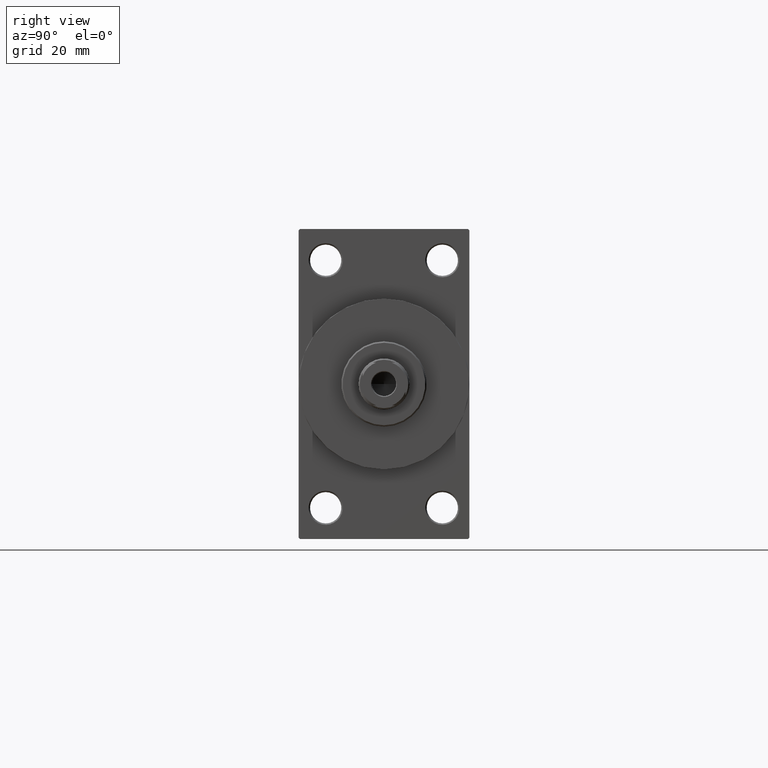
[diagram: clean part render]
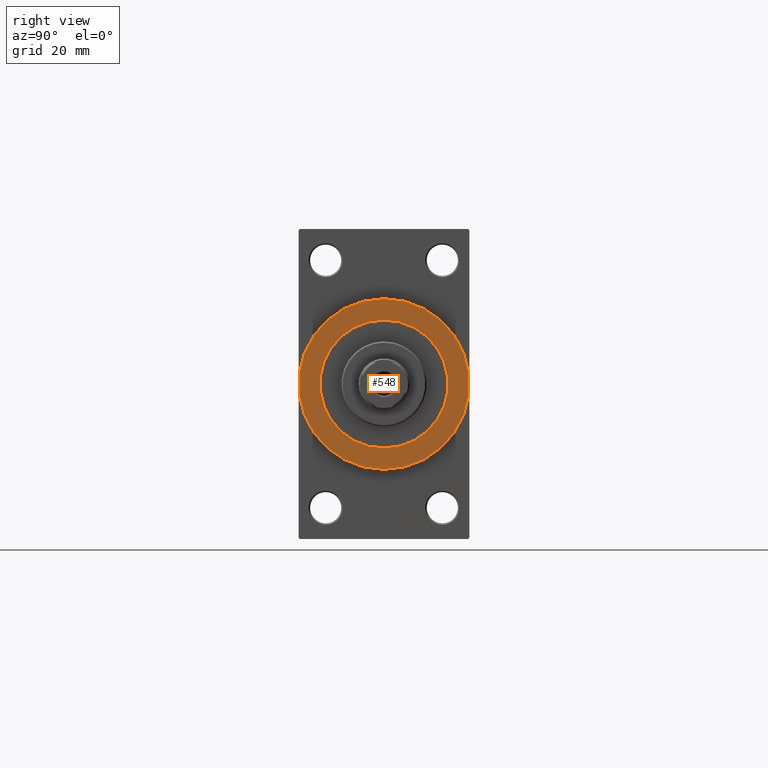
[diagram: same view with one face highlighted and labeled with its STEP entity id]
A machine part, right view. The second image highlights one B-rep face of the part: STEP entity #548.
In plain terms, the highlighted planar face has unit normal (1, 0, 0).
Its self-contained STEP definition (entity closure, byte-faithful):
#548 = ADVANCED_FACE ( 'NONE', ( #20323, #45617 ), #38687, .T. ) ;
#1416 = EDGE_LOOP ( 'NONE', ( #13824, #15287 ) ) ;
#5965 = DIRECTION ( 'NONE',  ( 0.000000000000000000, 0.000000000000000000, -1.000000000000000000 ) ) ;
#6529 = CARTESIAN_POINT ( 'NONE',  ( 188.0000000000000000, 3.673940397442059178E-15, -30.00000000000000000 ) ) ;
#6805 = ORIENTED_EDGE ( 'NONE', *, *, #11671, .F. ) ;
#8250 = CIRCLE ( 'NONE', #37998, 22.50000000000000355 ) ;
#8675 = DIRECTION ( 'NONE',  ( 1.000000000000000000, 0.000000000000000000, 0.000000000000000000 ) ) ;
#11011 = DIRECTION ( 'NONE',  ( 0.000000000000000000, 0.000000000000000000, -1.000000000000000000 ) ) ;
#11504 = VERTEX_POINT ( 'NONE', #19448 ) ;
#11671 = EDGE_CURVE ( 'NONE', #26905, #11504, #8250, .T. ) ;
#12227 = DIRECTION ( 'NONE',  ( 1.000000000000000000, 0.000000000000000000, 0.000000000000000000 ) ) ;
#13824 = ORIENTED_EDGE ( 'NONE', *, *, #32765, .T. ) ;
#14125 = DIRECTION ( 'NONE',  ( 1.000000000000000000, 0.000000000000000000, 0.000000000000000000 ) ) ;
#15287 = ORIENTED_EDGE ( 'NONE', *, *, #29169, .T. ) ;
#15486 = EDGE_LOOP ( 'NONE', ( #6805, #43403 ) ) ;
#19448 = CARTESIAN_POINT ( 'NONE',  ( 188.0000000000000000, 2.755455298081545172E-15, 22.50000000000000355 ) ) ;
#20323 = FACE_BOUND ( 'NONE', #15486, .T. ) ;
#21036 = CARTESIAN_POINT ( 'NONE',  ( 188.0000000000000000, 0.000000000000000000, 0.000000000000000000 ) ) ;
#21796 = DIRECTION ( 'NONE',  ( 0.000000000000000000, 0.000000000000000000, -1.000000000000000000 ) ) ;
#21839 = CARTESIAN_POINT ( 'NONE',  ( 188.0000000000000000, 0.000000000000000000, 0.000000000000000000 ) ) ;
#21880 = VERTEX_POINT ( 'NONE', #40478 ) ;
#22424 = AXIS2_PLACEMENT_3D ( 'NONE', #44906, #12227, #5965 ) ;
#22960 = CARTESIAN_POINT ( 'NONE',  ( 188.0000000000000000, 0.000000000000000000, -22.50000000000000355 ) ) ;
#23466 = AXIS2_PLACEMENT_3D ( 'NONE', #35888, #36118, #21796 ) ;
#24912 = AXIS2_PLACEMENT_3D ( 'NONE', #40915, #8675, #26597 ) ;
#25645 = DIRECTION ( 'NONE',  ( 0.000000000000000000, 0.000000000000000000, -1.000000000000000000 ) ) ;
#26597 = DIRECTION ( 'NONE',  ( 0.000000000000000000, 0.000000000000000000, -1.000000000000000000 ) ) ;
#26905 = VERTEX_POINT ( 'NONE', #22960 ) ;
#27491 = CIRCLE ( 'NONE', #31300, 22.50000000000000355 ) ;
#29169 = EDGE_CURVE ( 'NONE', #40573, #21880, #31746, .T. ) ;
#31088 = CIRCLE ( 'NONE', #23466, 30.00000000000000000 ) ;
#31300 = AXIS2_PLACEMENT_3D ( 'NONE', #21839, #36383, #25645 ) ;
#31746 = CIRCLE ( 'NONE', #24912, 30.00000000000000000 ) ;
#32765 = EDGE_CURVE ( 'NONE', #21880, #40573, #31088, .T. ) ;
#35888 = CARTESIAN_POINT ( 'NONE',  ( 188.0000000000000000, 0.000000000000000000, 0.000000000000000000 ) ) ;
#36118 = DIRECTION ( 'NONE',  ( 1.000000000000000000, 0.000000000000000000, 0.000000000000000000 ) ) ;
#36383 = DIRECTION ( 'NONE',  ( 1.000000000000000000, 0.000000000000000000, 0.000000000000000000 ) ) ;
#37998 = AXIS2_PLACEMENT_3D ( 'NONE', #21036, #14125, #11011 ) ;
#38687 = PLANE ( 'NONE',  #22424 ) ;
#40478 = CARTESIAN_POINT ( 'NONE',  ( 188.0000000000000000, 0.000000000000000000, 30.00000000000000000 ) ) ;
#40573 = VERTEX_POINT ( 'NONE', #6529 ) ;
#40915 = CARTESIAN_POINT ( 'NONE',  ( 188.0000000000000000, 0.000000000000000000, 0.000000000000000000 ) ) ;
#41660 = EDGE_CURVE ( 'NONE', #11504, #26905, #27491, .T. ) ;
#43403 = ORIENTED_EDGE ( 'NONE', *, *, #41660, .F. ) ;
#44906 = CARTESIAN_POINT ( 'NONE',  ( 188.0000000000000000, 0.000000000000000000, 0.000000000000000000 ) ) ;
#45617 = FACE_OUTER_BOUND ( 'NONE', #1416, .T. ) ;